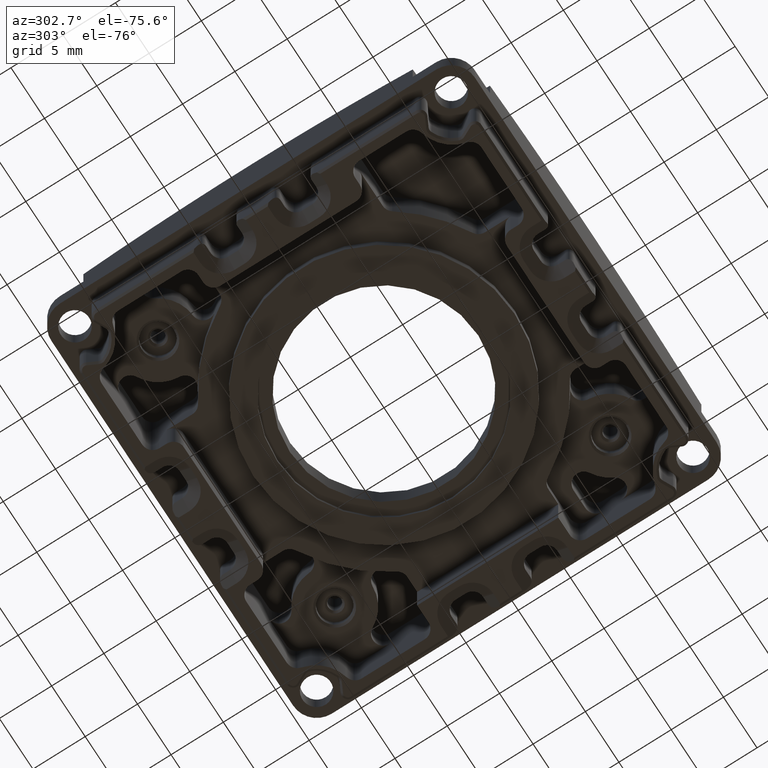
[diagram: clean part render]
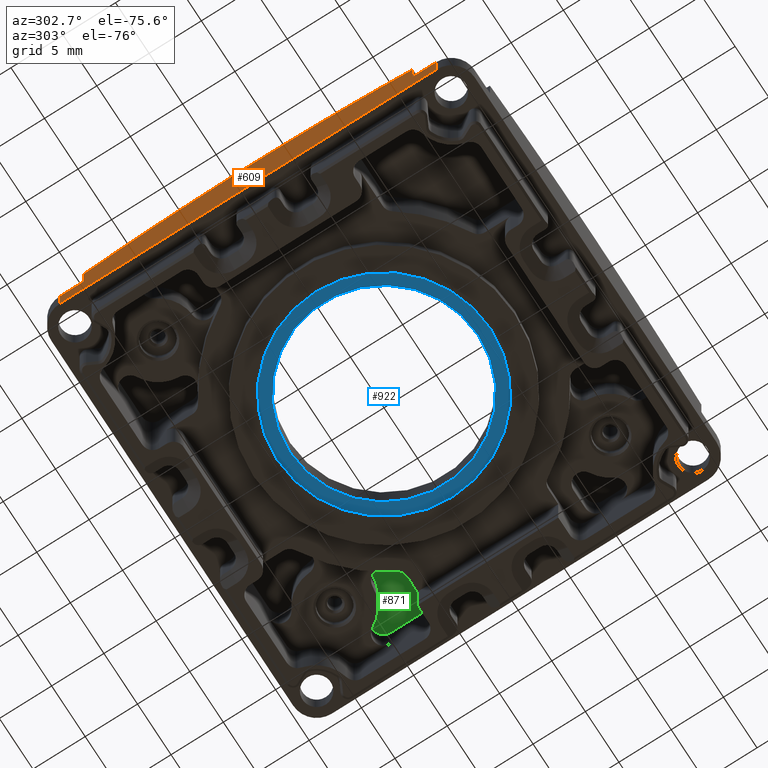
[diagram: same view with three faces highlighted in distinct colors, each labeled with its STEP entity id]
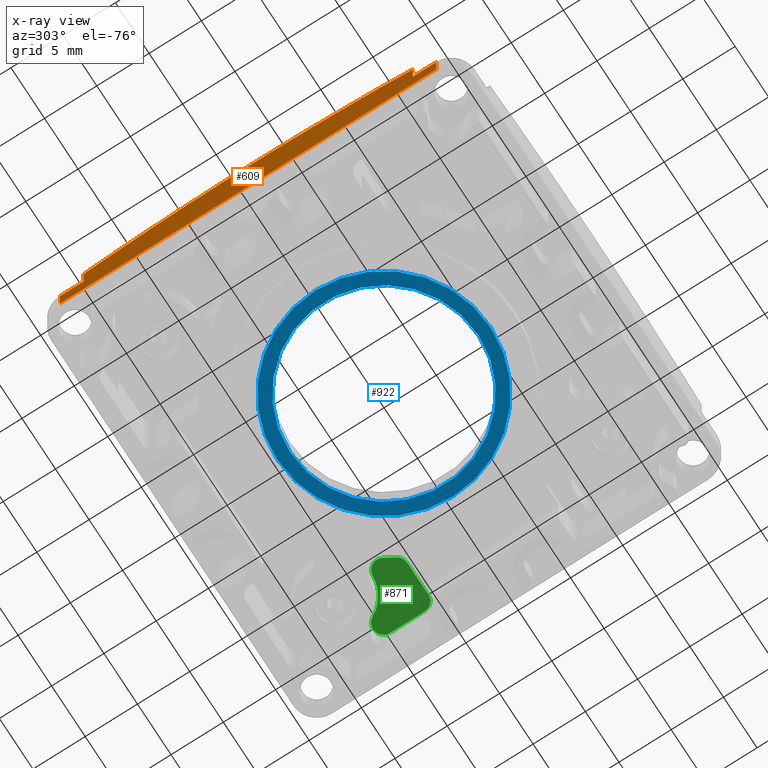
[diagram: x-ray of the same camera — body ghosted, the three highlighted faces saturated]
A machine part, auxiliary view with three faces highlighted in distinct colors.
The next image is the same camera in x-ray (body ghosted, the three faces saturated) — at least one of them is partly hidden behind the body in this view.
Their STEP definitions:

[orange] entity #609 — the highlighted planar face has unit normal (-1, 0, 0).
#609=ADVANCED_FACE('',(#1034),#4142,.T.);
#1034=FACE_OUTER_BOUND('',#1487,.F.);
#1487=EDGE_LOOP('',(#2028,#2029,#2030,#2031,#2032,#2033,#2034,#2035));
#2028=ORIENTED_EDGE('',*,*,#7020,.T.);
#2029=ORIENTED_EDGE('',*,*,#7022,.T.);
#2030=ORIENTED_EDGE('',*,*,#7179,.F.);
#2031=ORIENTED_EDGE('',*,*,#7172,.F.);
#2032=ORIENTED_EDGE('',*,*,#7180,.T.);
#2033=ORIENTED_EDGE('',*,*,#7029,.T.);
#2034=ORIENTED_EDGE('',*,*,#7028,.T.);
#2035=ORIENTED_EDGE('',*,*,#6952,.T.);
#4142=PLANE('',#10494);
#6496=B_SPLINE_CURVE_WITH_KNOTS('',3,(#14011,#14012,#14013,#14014,#14015,
#14016,#14017,#14018,#14019,#14020),.UNSPECIFIED.,.F.,.F.,(4,1,1,1,1,1,1,
4),(0.,0.166651954952925,0.285699260493636,0.428564561874716,0.571435438127242,
0.714300739507821,0.833348045047914,1.),.UNSPECIFIED.);
#6952=EDGE_CURVE('',#10022,#10021,#6496,.T.);
#7020=EDGE_CURVE('',#10021,#9946,#8054,.T.);
#7022=EDGE_CURVE('',#9946,#9947,#8056,.T.);
#7028=EDGE_CURVE('',#9939,#10022,#8059,.T.);
#7029=EDGE_CURVE('',#9942,#9939,#8060,.T.);
#7172=EDGE_CURVE('',#9782,#9775,#8123,.T.);
#7179=EDGE_CURVE('',#9775,#9947,#8130,.T.);
#7180=EDGE_CURVE('',#9782,#9942,#8131,.T.);
#8054=LINE('',#14124,#8730);
#8056=LINE('',#14126,#8732);
#8059=LINE('',#14132,#8735);
#8060=LINE('',#14133,#8736);
#8123=LINE('',#14532,#8799);
#8130=LINE('',#14539,#8806);
#8131=LINE('',#14540,#8807);
#8730=VECTOR('',#11058,2.37180612918519);
#8732=VECTOR('',#11060,2.25000040268436);
#8735=VECTOR('',#11069,2.37180616410333);
#8736=VECTOR('',#11070,2.24999261238713);
#8799=VECTOR('',#11229,35.9999926041928);
#8806=VECTOR('',#11236,2.40000016289288);
#8807=VECTOR('',#11237,2.40000016289292);
#9775=VERTEX_POINT('',#13611);
#9782=VERTEX_POINT('',#13618);
#9939=VERTEX_POINT('',#13775);
#9942=VERTEX_POINT('',#13778);
#9946=VERTEX_POINT('',#13782);
#9947=VERTEX_POINT('',#13783);
#10021=VERTEX_POINT('',#13857);
#10022=VERTEX_POINT('',#13858);
#10494=AXIS2_PLACEMENT_3D('',#15393,#12373,#12374);
#11058=DIRECTION('',(0.,0.,-1.));
#11060=DIRECTION('',(0.,-1.,0.));
#11069=DIRECTION('',(0.,0.,1.));
#11070=DIRECTION('',(0.,-1.,0.));
#11229=DIRECTION('',(0.,-1.,0.));
#11236=DIRECTION('',(0.,0.,1.));
#11237=DIRECTION('',(0.,1.71203355418763E-07,0.999999999999985));
#12373=DIRECTION('',(-1.,0.,0.));
#12374=DIRECTION('',(0.,-1.,0.));
#13611=CARTESIAN_POINT('',(-20.2499999295902,-18.0000002657248,0.));
#13618=CARTESIAN_POINT('',(-20.2499999295907,17.9999927493498,0.));
#13775=CARTESIAN_POINT('',(-20.2499976247546,15.75,2.40000016289286));
#13778=CARTESIAN_POINT('',(-20.2499999295906,17.9999928863125,2.40000016289286));
#13782=CARTESIAN_POINT('',(-20.2499976247542,-15.75,2.40000016289288));
#13783=CARTESIAN_POINT('',(-20.2499999295902,-18.0000004026843,2.40000016289288));
#13857=CARTESIAN_POINT('',(-20.250004784596,-15.7500001432055,4.77180515134492));
#13858=CARTESIAN_POINT('',(-20.2500047846138,15.7500001432055,4.77180518522928));
#14011=CARTESIAN_POINT('',(-20.250002377061,15.7499999519911,4.77180605811023));
#14012=CARTESIAN_POINT('',(-20.2499994727532,14.028203821165,5.15427078539599));
#14013=CARTESIAN_POINT('',(-20.2499985518173,11.0529062327985,5.70230893356596));
#14014=CARTESIAN_POINT('',(-20.2499996439025,6.54743731083825,6.2442560600202));
#14015=CARTESIAN_POINT('',(-20.2500088155885,2.26938416213234,6.51179561438807));
#14016=CARTESIAN_POINT('',(-20.2500088155855,-2.26938416604767,6.51179560935584));
#14017=CARTESIAN_POINT('',(-20.249999643902,-6.54743731414834,6.24425604549971));
#14018=CARTESIAN_POINT('',(-20.2499985518173,-11.0529062348863,5.70230890905747));
#14019=CARTESIAN_POINT('',(-20.2499994727529,-14.0282038220222,5.15427075429236));
#14020=CARTESIAN_POINT('',(-20.2500023770604,-15.7499999519919,4.77180602319184));
#14124=CARTESIAN_POINT('',(-20.2499999295902,-15.75,4.77180629207807));
#14126=CARTESIAN_POINT('',(-20.2499999295902,-15.75,2.40000016289288));
#14132=CARTESIAN_POINT('',(-20.2499999295907,15.75,2.40000016289286));
#14133=CARTESIAN_POINT('',(-20.2499999295908,17.9999926123871,2.40000016289286));
#14532=CARTESIAN_POINT('',(-20.2499999295908,17.9999926123871,0.));
#14539=CARTESIAN_POINT('',(-20.2499999295902,-18.0000004026843,0.));
#14540=CARTESIAN_POINT('',(-20.2499999295908,17.9999926123871,0.));
#15393=CARTESIAN_POINT('',(-20.2499999295908,18.3599925384291,-0.359999926041951));

[blue] entity #922 — the highlighted planar face has unit normal (0, 0, -1).
#922=ADVANCED_FACE('',(#1466,#1347),#4303,.T.);
#1347=FACE_OUTER_BOUND('',#1811,.F.);
#1466=FACE_BOUND('',#1810,.F.);
#1810=EDGE_LOOP('',(#3728,#3729));
#1811=EDGE_LOOP('',(#3730,#3731));
#3728=ORIENTED_EDGE('',*,*,#6960,.F.);
#3729=ORIENTED_EDGE('',*,*,#6959,.F.);
#3730=ORIENTED_EDGE('',*,*,#7886,.T.);
#3731=ORIENTED_EDGE('',*,*,#7883,.T.);
#4303=PLANE('',#10807);
#6549=CIRCLE('',#10118,9.);
#6550=CIRCLE('',#10119,9.);
#6853=CIRCLE('',#10422,10.2);
#6854=CIRCLE('',#10423,10.2);
#6959=EDGE_CURVE('',#10016,#10015,#6549,.T.);
#6960=EDGE_CURVE('',#10015,#10016,#6550,.T.);
#7883=EDGE_CURVE('',#9434,#9433,#6853,.T.);
#7886=EDGE_CURVE('',#9433,#9434,#6854,.T.);
#9433=VERTEX_POINT('',#13269);
#9434=VERTEX_POINT('',#13270);
#10015=VERTEX_POINT('',#13851);
#10016=VERTEX_POINT('',#13852);
#10118=AXIS2_PLACEMENT_3D('',#14063,#10955,#10956);
#10119=AXIS2_PLACEMENT_3D('',#14064,#10957,#10958);
#10422=AXIS2_PLACEMENT_3D('',#15243,#12151,#12152);
#10423=AXIS2_PLACEMENT_3D('',#15246,#12155,#12156);
#10807=AXIS2_PLACEMENT_3D('',#15706,#12999,#13000);
#10955=DIRECTION('',(0.,0.,1.));
#10956=DIRECTION('',(0.,-1.,0.));
#10957=DIRECTION('',(0.,0.,1.));
#10958=DIRECTION('',(0.,1.,0.));
#12151=DIRECTION('',(0.,0.,1.));
#12152=DIRECTION('',(0.,1.,0.));
#12155=DIRECTION('',(0.,0.,1.));
#12156=DIRECTION('',(0.,-1.,0.));
#12999=DIRECTION('',(0.,0.,-1.));
#13000=DIRECTION('',(-1.,0.,0.));
#13269=CARTESIAN_POINT('',(0.,-10.2,-0.649999999999987));
#13270=CARTESIAN_POINT('',(0.,10.2,-0.649999999999984));
#13851=CARTESIAN_POINT('',(0.,8.99999999999996,-0.649999999999984));
#13852=CARTESIAN_POINT('',(0.,-9.00000000000004,-0.649999999999986));
#14063=CARTESIAN_POINT('',(0.,0.,-0.649999999999986));
#14064=CARTESIAN_POINT('',(0.,0.,-0.649999999999986));
#15243=CARTESIAN_POINT('',(0.,0.,-0.649999999999986));
#15246=CARTESIAN_POINT('',(0.,0.,-0.649999999999986));
#15706=CARTESIAN_POINT('',(10.404,10.404,-0.649999999999986));

[green] entity #871 — the highlighted planar face has unit normal (0, 0, -1).
#871=ADVANCED_FACE('',(#1296),#4286,.T.);
#1296=FACE_OUTER_BOUND('',#1758,.F.);
#1758=EDGE_LOOP('',(#3488,#3489,#3490,#3491,#3492,#3493,#3494,#3495));
#3488=ORIENTED_EDGE('',*,*,#7785,.F.);
#3489=ORIENTED_EDGE('',*,*,#7792,.T.);
#3490=ORIENTED_EDGE('',*,*,#7791,.T.);
#3491=ORIENTED_EDGE('',*,*,#7790,.T.);
#3492=ORIENTED_EDGE('',*,*,#7789,.T.);
#3493=ORIENTED_EDGE('',*,*,#7788,.T.);
#3494=ORIENTED_EDGE('',*,*,#7787,.F.);
#3495=ORIENTED_EDGE('',*,*,#7786,.T.);
#4286=PLANE('',#10756);
#6817=CIRCLE('',#10386,15.);
#6818=CIRCLE('',#10387,1.);
#6819=CIRCLE('',#10388,3.5);
#6820=CIRCLE('',#10389,1.);
#6821=CIRCLE('',#10390,1.);
#6822=CIRCLE('',#10391,0.999999999999986);
#7785=EDGE_CURVE('',#9482,#9481,#6817,.T.);
#7786=EDGE_CURVE('',#9480,#9481,#6818,.T.);
#7787=EDGE_CURVE('',#9480,#9479,#6819,.T.);
#7788=EDGE_CURVE('',#9478,#9479,#6820,.T.);
#7789=EDGE_CURVE('',#9477,#9478,#8561,.T.);
#7790=EDGE_CURVE('',#9476,#9477,#6821,.T.);
#7791=EDGE_CURVE('',#9475,#9476,#8562,.T.);
#7792=EDGE_CURVE('',#9482,#9475,#6822,.T.);
#8561=LINE('',#15149,#9237);
#8562=LINE('',#15151,#9238);
#9237=VECTOR('',#12025,3.32021037781318);
#9238=VECTOR('',#12028,3.15223443830462);
#9475=VERTEX_POINT('',#13311);
#9476=VERTEX_POINT('',#13312);
#9477=VERTEX_POINT('',#13313);
#9478=VERTEX_POINT('',#13314);
#9479=VERTEX_POINT('',#13315);
#9480=VERTEX_POINT('',#13316);
#9481=VERTEX_POINT('',#13317);
#9482=VERTEX_POINT('',#13318);
#10386=AXIS2_PLACEMENT_3D('',#15145,#12017,#12018);
#10387=AXIS2_PLACEMENT_3D('',#15146,#12019,#12020);
#10388=AXIS2_PLACEMENT_3D('',#15147,#12021,#12022);
#10389=AXIS2_PLACEMENT_3D('',#15148,#12023,#12024);
#10390=AXIS2_PLACEMENT_3D('',#15150,#12026,#12027);
#10391=AXIS2_PLACEMENT_3D('',#15152,#12029,#12030);
#10756=AXIS2_PLACEMENT_3D('',#15655,#12897,#12898);
#12017=DIRECTION('',(0.,0.,1.));
#12018=DIRECTION('',(0.874860356411172,0.484375223127811,0.));
#12019=DIRECTION('',(0.,0.,1.));
#12020=DIRECTION('',(-0.0605008199304393,0.998168147552177,0.));
#12021=DIRECTION('',(0.,0.,1.));
#12022=DIRECTION('',(0.0605008199304236,-0.998168147552178,0.));
#12023=DIRECTION('',(0.,0.,1.));
#12024=DIRECTION('',(1.,0.,0.));
#12025=DIRECTION('',(0.,1.,0.));
#12026=DIRECTION('',(0.,0.,1.));
#12027=DIRECTION('',(0.,-1.,0.));
#12028=DIRECTION('',(1.,0.,0.));
#12029=DIRECTION('',(0.,0.,1.));
#12030=DIRECTION('',(-0.874860356411159,-0.484375223127835,0.));
#12897=DIRECTION('',(0.,0.,-1.));
#12898=DIRECTION('',(-1.,0.,0.));
#13311=CARTESIAN_POINT('',(13.9977657025843,6.7500035700421,4.65000000000002));
#13312=CARTESIAN_POINT('',(17.1500001408889,6.7500035700516,4.65000000000002));
#13313=CARTESIAN_POINT('',(18.1500001408891,7.7500035700525,4.65000000000002));
#13314=CARTESIAN_POINT('',(18.1500001408809,11.0702139478655,4.65000000000002));
#13315=CARTESIAN_POINT('',(16.2655253801497,11.53680198631,4.65000000000002));
#13316=CARTESIAN_POINT('',(13.3816165873468,9.67627160447036,4.65000000000002));
#13317=CARTESIAN_POINT('',(12.6019850693224,8.13572199086079,4.65000000000002));
#13318=CARTESIAN_POINT('',(13.1229053461676,7.26562834691713,4.65000000000002));
#15145=CARTESIAN_POINT('',(0.,0.,4.65000000000002));
#15146=CARTESIAN_POINT('',(13.4421174072772,8.67810345691817,4.65000000000002));
#15147=CARTESIAN_POINT('',(13.1698637175903,13.169860120903,4.65000000000002));
#15148=CARTESIAN_POINT('',(17.1500001408809,11.0702139478549,4.65000000000002));
#15149=CARTESIAN_POINT('',(18.150000140889,7.7500035700525,4.65000000000002));
#15150=CARTESIAN_POINT('',(17.1500001408892,7.75000357005088,4.65000000000002));
#15151=CARTESIAN_POINT('',(13.9977657025843,6.75000357004067,4.65000000000002));
#15152=CARTESIAN_POINT('',(13.9977657025788,7.75000357004496,4.65000000000002));
#15655=CARTESIAN_POINT('',(18.2083054313331,12.1285189794241,4.65000000000002));